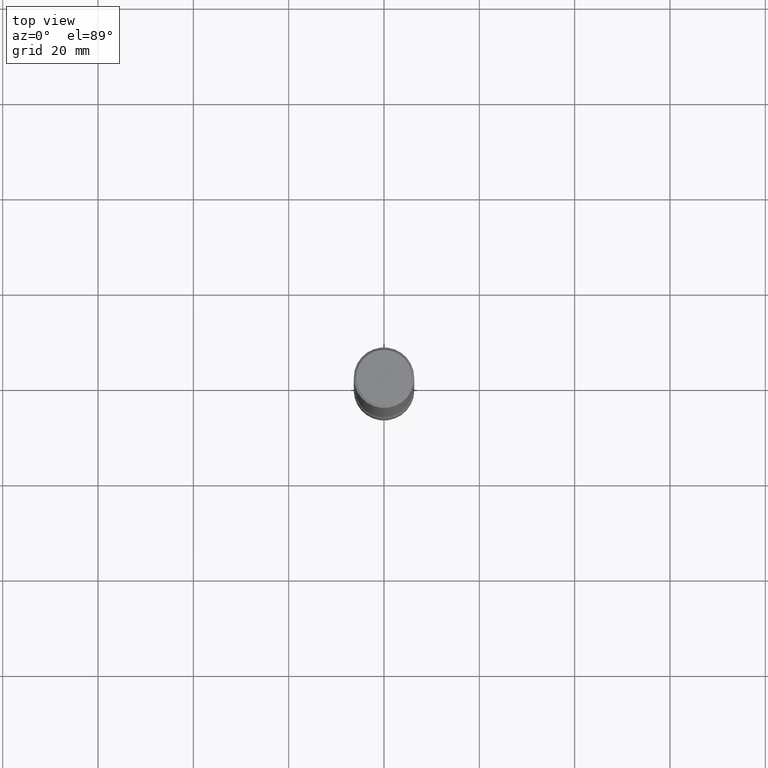
[diagram: clean part render]
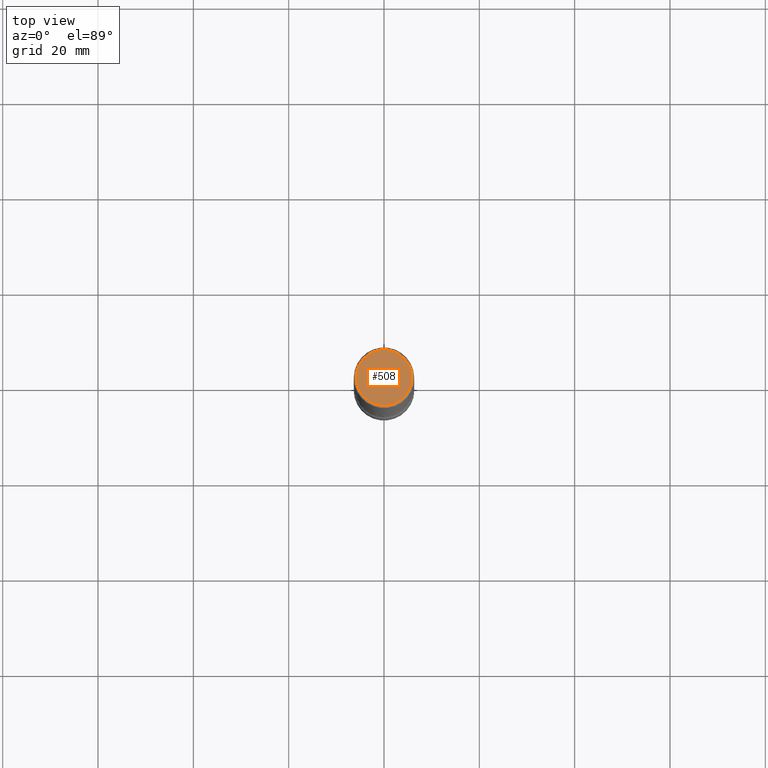
[diagram: same view with one face highlighted and labeled with its STEP entity id]
A machine part, top view. The second image highlights one B-rep face of the part: STEP entity #508.
In plain terms, the highlighted planar face has unit normal (0, -0, -1).
Its self-contained STEP definition (entity closure, byte-faithful):
#4 = EDGE_CURVE ( 'NONE', #346, #444, #538, .T. ) ;
#48 = EDGE_LOOP ( 'NONE', ( #535, #231 ) ) ;
#104 = DIRECTION ( 'NONE',  ( 2.438088387897960049E-29, -3.491481338843145188E-15, -1.000000000000000000 ) ) ;
#177 = EDGE_CURVE ( 'NONE', #444, #346, #260, .T. ) ;
#210 = CARTESIAN_POINT ( 'NONE',  ( -0.2299999999999997047, 1.640996229256270744E-15, -1.135408596578604579E-29 ) ) ;
#231 = ORIENTED_EDGE ( 'NONE', *, *, #177, .T. ) ;
#239 = DIRECTION ( 'NONE',  ( -1.000000000000000000, 6.982962677686265922E-15, -4.876176775795935793E-29 ) ) ;
#260 = CIRCLE ( 'NONE', #477, 0.2299999999999997047 ) ;
#300 = AXIS2_PLACEMENT_3D ( 'NONE', #324, #104, #239 ) ;
#317 = CARTESIAN_POINT ( 'NONE',  ( 0.000000000000000000, 0.000000000000000000, 0.000000000000000000 ) ) ;
#324 = CARTESIAN_POINT ( 'NONE',  ( 1.606081415867839095E-15, 0.2299999999999997047, -8.030407079339224072E-16 ) ) ;
#346 = VERTEX_POINT ( 'NONE', #210 ) ;
#406 = DIRECTION ( 'NONE',  ( -2.445468806185136597E-29, 3.491481338843145583E-15, 1.000000000000000000 ) ) ;
#412 = CARTESIAN_POINT ( 'NONE',  ( 0.000000000000000000, 0.000000000000000000, 0.000000000000000000 ) ) ;
#437 = AXIS2_PLACEMENT_3D ( 'NONE', #412, #499, #503 ) ;
#444 = VERTEX_POINT ( 'NONE', #525 ) ;
#452 = PLANE ( 'NONE',  #300 ) ;
#477 = AXIS2_PLACEMENT_3D ( 'NONE', #317, #406, #484 ) ;
#484 = DIRECTION ( 'NONE',  ( 1.000000000000000000, -6.982962677686266711E-15, 4.876176775795935793E-29 ) ) ;
#495 = FACE_OUTER_BOUND ( 'NONE', #48, .T. ) ;
#499 = DIRECTION ( 'NONE',  ( -2.445468806185136597E-29, 3.491481338843145583E-15, 1.000000000000000000 ) ) ;
#503 = DIRECTION ( 'NONE',  ( 1.000000000000000000, -6.982962677686266711E-15, 4.876176775795935793E-29 ) ) ;
#508 = ADVANCED_FACE ( 'NONE', ( #495 ), #452, .F. ) ;
#525 = CARTESIAN_POINT ( 'NONE',  ( 0.2299999999999997047, -1.681434332853597236E-15, 1.149527484987431679E-29 ) ) ;
#535 = ORIENTED_EDGE ( 'NONE', *, *, #4, .T. ) ;
#538 = CIRCLE ( 'NONE', #437, 0.2299999999999997047 ) ;